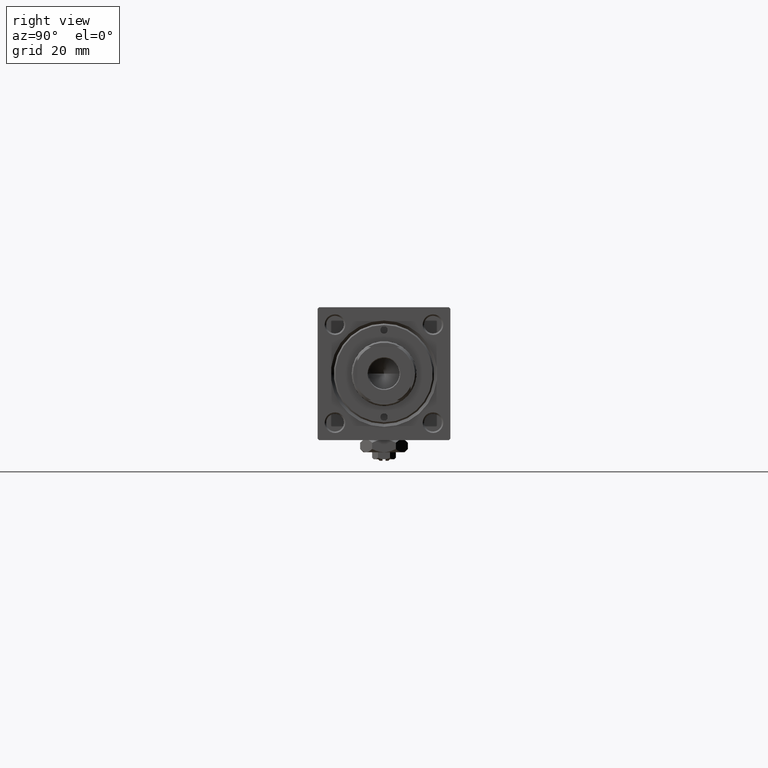
[diagram: clean part render]
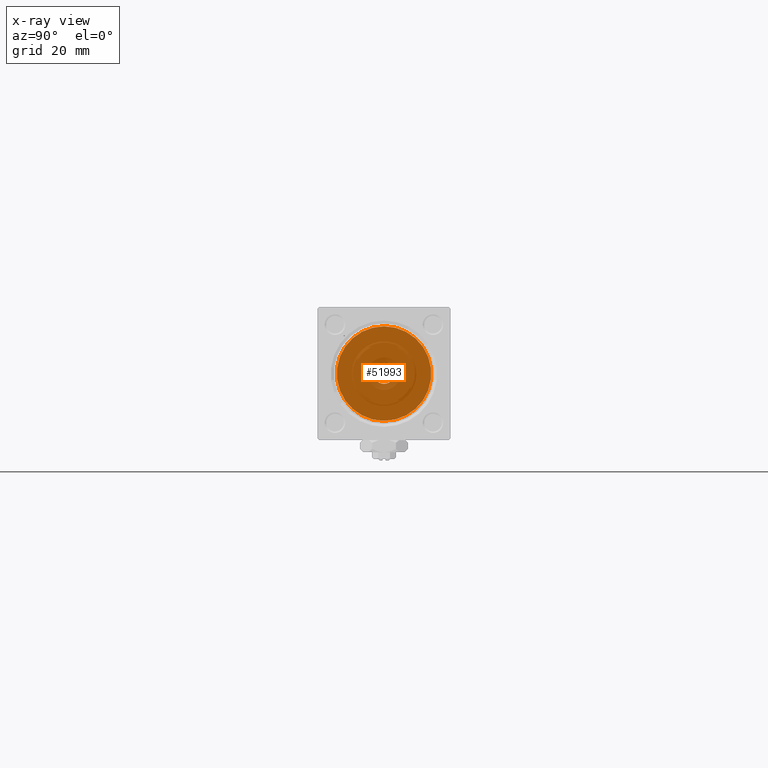
[diagram: x-ray — body ghosted, one internal face saturated and labeled with its STEP entity id]
A machine part, right view, then the same camera in x-ray: the body is ghosted and one INTERNAL B-rep face — a face not visible from any outside direction — is saturated and labeled: STEP entity #51993.
In plain terms, the highlighted planar face has unit normal (-1, 0, 0).
Its self-contained STEP definition (entity closure, byte-faithful):
#1153 = EDGE_CURVE ( 'NONE', #6767, #6223, #48997, .T. ) ;
#2981 = AXIS2_PLACEMENT_3D ( 'NONE', #41627, #3759, #53269 ) ;
#3759 = DIRECTION ( 'NONE',  ( -1.000000000000000000, 0.000000000000000000, -0.000000000000000000 ) ) ;
#4689 = CIRCLE ( 'NONE', #2981, 3.500000000000000000 ) ;
#4738 = CARTESIAN_POINT ( 'NONE',  ( 24.99999999999999289, 4.286263797015736595E-16, -3.500000000000000000 ) ) ;
#5166 = ORIENTED_EDGE ( 'NONE', *, *, #36140, .T. ) ;
#5618 = AXIS2_PLACEMENT_3D ( 'NONE', #15905, #23496, #11861 ) ;
#6223 = VERTEX_POINT ( 'NONE', #10910 ) ;
#6767 = VERTEX_POINT ( 'NONE', #34881 ) ;
#10910 = CARTESIAN_POINT ( 'NONE',  ( 25.00000000000000000, -6.426503353294456087E-16, -16.00000000000000000 ) ) ;
#11861 = DIRECTION ( 'NONE',  ( -0.000000000000000000, 0.000000000000000000, 1.000000000000000000 ) ) ;
#15645 = CIRCLE ( 'NONE', #31220, 16.00000000000000000 ) ;
#15905 = CARTESIAN_POINT ( 'NONE',  ( 25.00000000000000000, 0.000000000000000000, 0.000000000000000000 ) ) ;
#17675 = DIRECTION ( 'NONE',  ( 0.000000000000000000, 0.000000000000000000, -1.000000000000000000 ) ) ;
#20175 = CARTESIAN_POINT ( 'NONE',  ( 24.99999999999999289, 0.000000000000000000, 3.500000000000000000 ) ) ;
#20280 = AXIS2_PLACEMENT_3D ( 'NONE', #34734, #30418, #38001 ) ;
#21886 = ORIENTED_EDGE ( 'NONE', *, *, #46156, .T. ) ;
#23297 = ORIENTED_EDGE ( 'NONE', *, *, #47317, .T. ) ;
#23496 = DIRECTION ( 'NONE',  ( -1.000000000000000000, 0.000000000000000000, -0.000000000000000000 ) ) ;
#25795 = EDGE_LOOP ( 'NONE', ( #21886, #23297 ) ) ;
#26509 = DIRECTION ( 'NONE',  ( 0.000000000000000000, 0.000000000000000000, -1.000000000000000000 ) ) ;
#30418 = DIRECTION ( 'NONE',  ( -1.000000000000000000, 0.000000000000000000, -0.000000000000000000 ) ) ;
#31220 = AXIS2_PLACEMENT_3D ( 'NONE', #46140, #42865, #17675 ) ;
#32047 = VERTEX_POINT ( 'NONE', #4738 ) ;
#32744 = VERTEX_POINT ( 'NONE', #20175 ) ;
#34734 = CARTESIAN_POINT ( 'NONE',  ( 24.99999999999999289, 0.000000000000000000, 0.000000000000000000 ) ) ;
#34881 = CARTESIAN_POINT ( 'NONE',  ( 25.00000000000000000, -2.602085213965210642E-15, 16.00000000000000000 ) ) ;
#36140 = EDGE_CURVE ( 'NONE', #6223, #6767, #15645, .T. ) ;
#38001 = DIRECTION ( 'NONE',  ( 0.000000000000000000, 0.000000000000000000, 1.000000000000000000 ) ) ;
#40020 = FACE_BOUND ( 'NONE', #25795, .T. ) ;
#41627 = CARTESIAN_POINT ( 'NONE',  ( 24.99999999999999289, 0.000000000000000000, 0.000000000000000000 ) ) ;
#42865 = DIRECTION ( 'NONE',  ( 1.000000000000000000, 0.000000000000000000, 0.000000000000000000 ) ) ;
#43640 = CIRCLE ( 'NONE', #20280, 3.500000000000000000 ) ;
#45800 = ORIENTED_EDGE ( 'NONE', *, *, #1153, .T. ) ;
#46140 = CARTESIAN_POINT ( 'NONE',  ( 25.00000000000000000, -2.602085213965210642E-15, 0.000000000000000000 ) ) ;
#46156 = EDGE_CURVE ( 'NONE', #32744, #32047, #4689, .T. ) ;
#47317 = EDGE_CURVE ( 'NONE', #32047, #32744, #43640, .T. ) ;
#47625 = CARTESIAN_POINT ( 'NONE',  ( 25.00000000000000000, -2.602085213965210642E-15, 0.000000000000000000 ) ) ;
#48428 = PLANE ( 'NONE',  #5618 ) ;
#48530 = EDGE_LOOP ( 'NONE', ( #45800, #5166 ) ) ;
#48997 = CIRCLE ( 'NONE', #50746, 16.00000000000000000 ) ;
#50746 = AXIS2_PLACEMENT_3D ( 'NONE', #47625, #51669, #26509 ) ;
#51669 = DIRECTION ( 'NONE',  ( 1.000000000000000000, 0.000000000000000000, 0.000000000000000000 ) ) ;
#51993 = ADVANCED_FACE ( 'NONE', ( #40020, #53004 ), #48428, .F. ) ;
#53004 = FACE_OUTER_BOUND ( 'NONE', #48530, .T. ) ;
#53269 = DIRECTION ( 'NONE',  ( 0.000000000000000000, 0.000000000000000000, 1.000000000000000000 ) ) ;